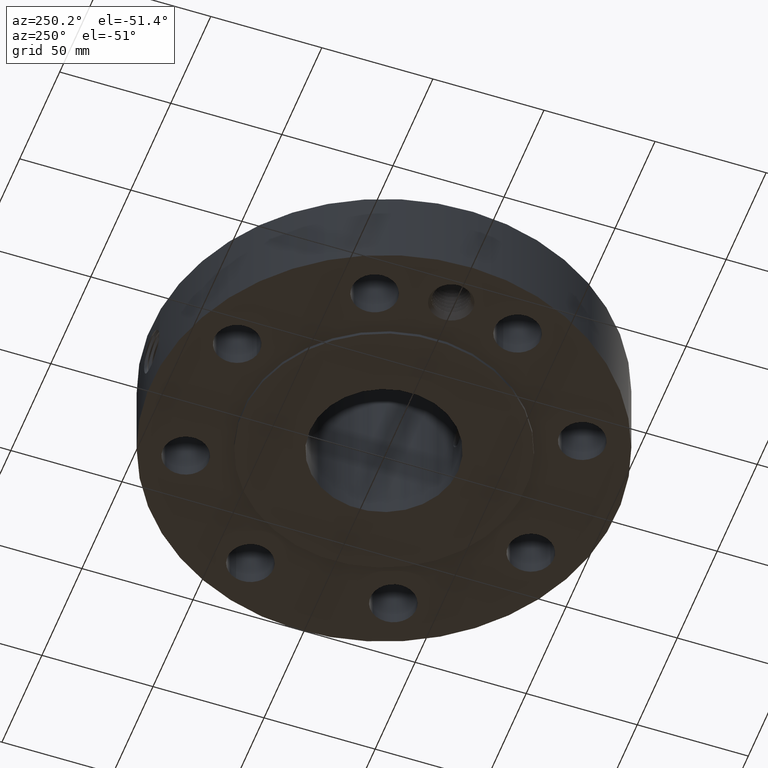
[diagram: clean part render]
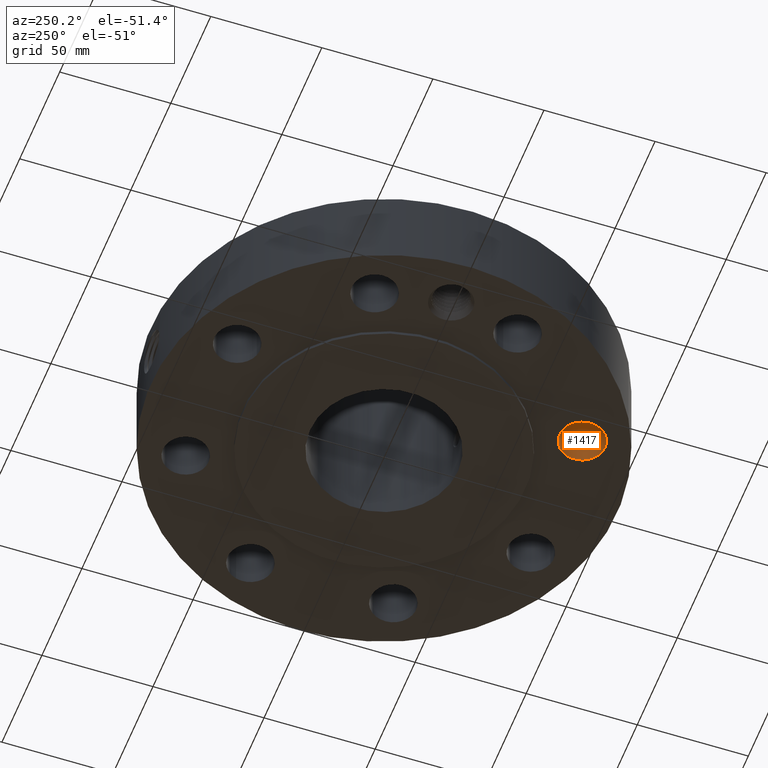
[diagram: same view with one face highlighted and labeled with its STEP entity id]
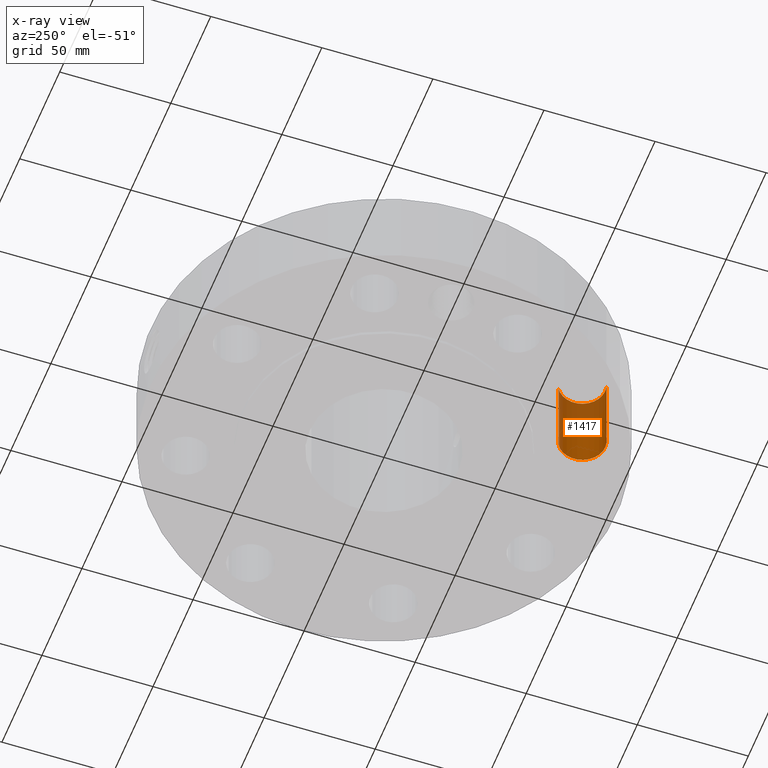
[diagram: x-ray of the same camera — body ghosted, the highlighted face saturated]
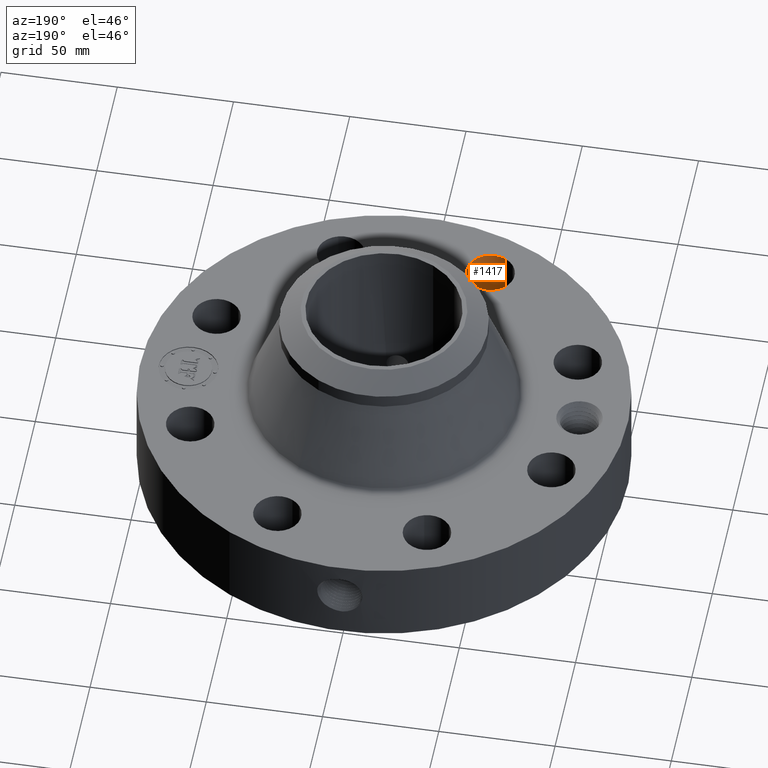
[diagram: same view with one face highlighted and labeled with its STEP entity id]
A machine part, auxiliary view. The second image highlights one B-rep face of the part: STEP entity #1417.
The next image is the same camera in x-ray: the body ghosted, the highlighted face saturated — about 31% of this face is hidden behind the body in this view.
A second angle (auxiliary view) of the same face is appended — the face is thin or edge-on in the first view.
In plain terms, the highlighted cylindrical surface (edge-blend (fillet) strip) has radius 10.287 mm, axis along (0, -0, -1).
Its self-contained STEP definition (entity closure, byte-faithful):
#278=AXIS2_PLACEMENT_3D('Circle Axis2P3D',#276,#277,$) ;
#604=AXIS2_PLACEMENT_3D('Circle Axis2P3D',#602,#603,$) ;
#1399=AXIS2_PLACEMENT_3D('Cylinder Axis2P3D',#1396,#1397,#1398) ;
#276=CARTESIAN_POINT('Axis2P3D Location',(-1.26668216113,-3.05804125262,0.0600000000002)) ;
#280=CARTESIAN_POINT('Vertex',(-1.072514818,-2.70262031506,0.0600000000002)) ;
#282=CARTESIAN_POINT('Vertex',(-1.46084950427,-3.41346219019,0.0600000000002)) ;
#597=CARTESIAN_POINT('Vertex',(-1.46084950427,-3.41346219019,1.56000000001)) ;
#599=CARTESIAN_POINT('Vertex',(-1.072514818,-2.70262031506,1.56000000001)) ;
#602=CARTESIAN_POINT('Axis2P3D Location',(-1.26668216113,-3.05804125262,1.56000000001)) ;
#1396=CARTESIAN_POINT('Axis2P3D Location',(-1.26668216113,-3.05804125262,1.55606299213)) ;
#1401=CARTESIAN_POINT('Line Origine',(-1.072514818,-2.70262031506,0.810000000003)) ;
#1406=CARTESIAN_POINT('Line Origine',(-1.46084950427,-3.41346219019,0.810000000003)) ;
#277=DIRECTION('Axis2P3D Direction',(0.,0.,-0.0393700787402)) ;
#603=DIRECTION('Axis2P3D Direction',(0.,0.,-0.0393700787402)) ;
#1397=DIRECTION('Axis2P3D Direction',(0.,-0.,-0.0393700787402)) ;
#1398=DIRECTION('Axis2P3D XDirection',(-0.0188750212049,-0.0345504945626,0.)) ;
#1402=DIRECTION('Vector Direction',(0.,0.,-0.0393700787402)) ;
#1407=DIRECTION('Vector Direction',(0.,0.,-0.0393700787402)) ;
#1403=VECTOR('Line Direction',#1402,0.0393700787402) ;
#1408=VECTOR('Line Direction',#1407,0.0393700787402) ;
#1412=ORIENTED_EDGE('',*,*,#1405,.F.) ;
#1413=ORIENTED_EDGE('',*,*,#284,.T.) ;
#1414=ORIENTED_EDGE('',*,*,#1410,.T.) ;
#1415=ORIENTED_EDGE('',*,*,#606,.F.) ;
#1417=ADVANCED_FACE('PartBody',(#1416),#1400,.F.) ;
#279=CIRCLE('generated circle',#278,0.405000000002) ;
#605=CIRCLE('generated circle',#604,0.405000000002) ;
#1400=CYLINDRICAL_SURFACE('generated cylinder',#1399,0.405000000002) ;
#284=EDGE_CURVE('',#281,#283,#279,.T.) ;
#606=EDGE_CURVE('',#600,#598,#605,.T.) ;
#1405=EDGE_CURVE('',#281,#600,#1404,.F.) ;
#1410=EDGE_CURVE('',#283,#598,#1409,.F.) ;
#1411=EDGE_LOOP('',(#1412,#1413,#1414,#1415)) ;
#1416=FACE_OUTER_BOUND('',#1411,.T.) ;
#1404=LINE('Line',#1401,#1403) ;
#1409=LINE('Line',#1406,#1408) ;
#281=VERTEX_POINT('',#280) ;
#283=VERTEX_POINT('',#282) ;
#598=VERTEX_POINT('',#597) ;
#600=VERTEX_POINT('',#599) ;